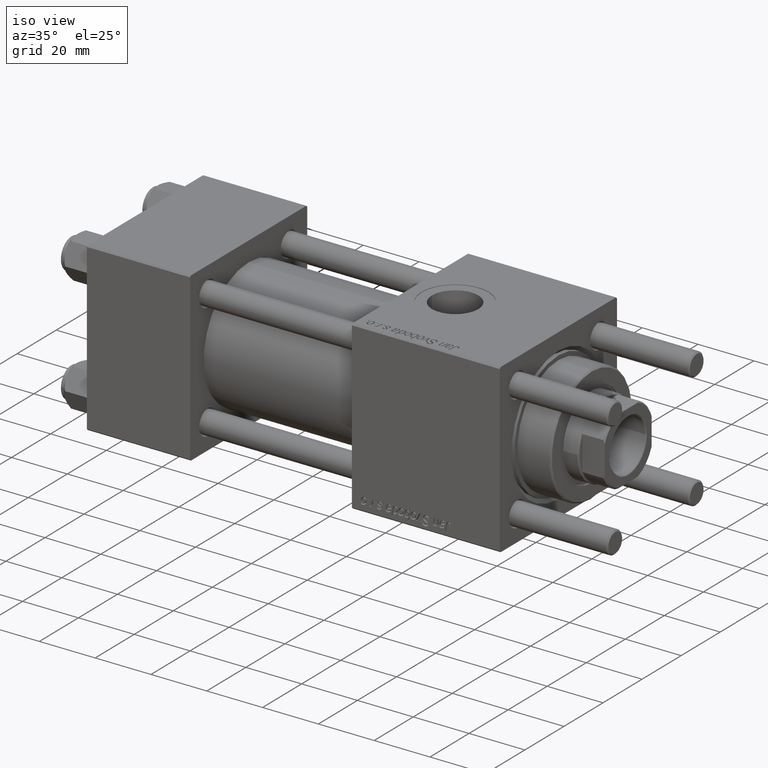
[diagram: clean part render]
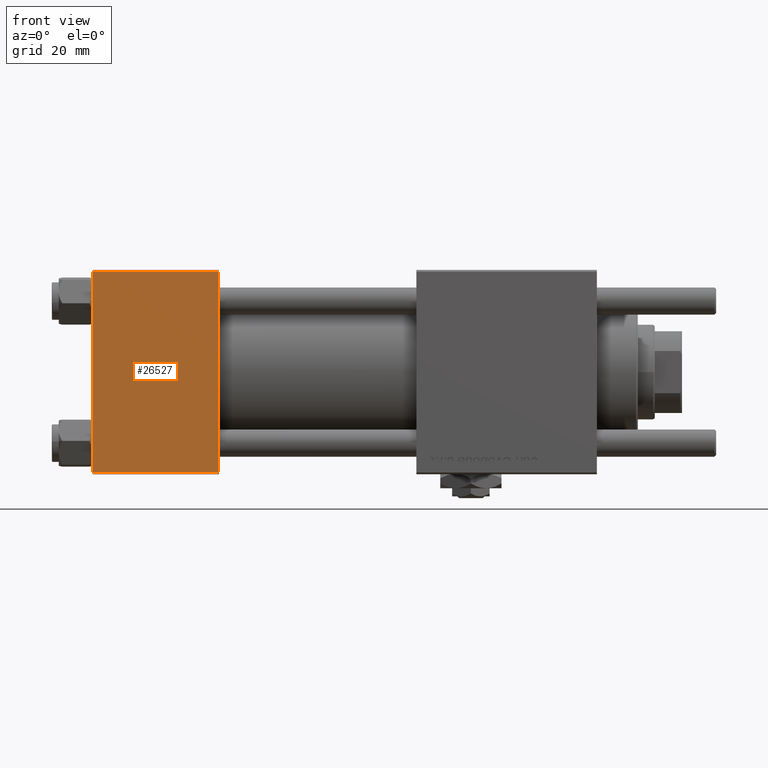
[diagram: tour spotlight — one face highlighted and labeled with its STEP entity id]
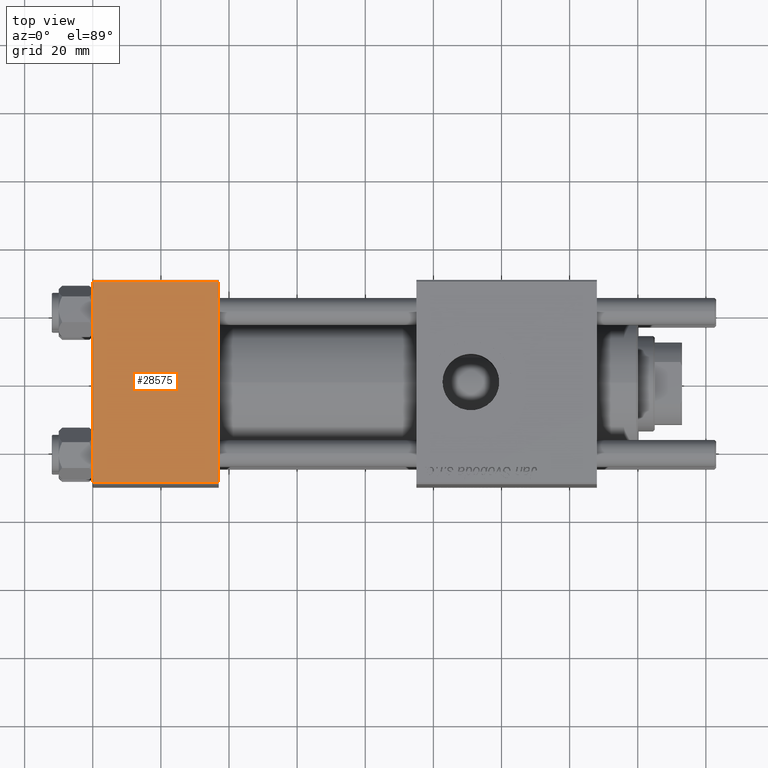
[diagram: tour spotlight — one face highlighted and labeled with its STEP entity id]
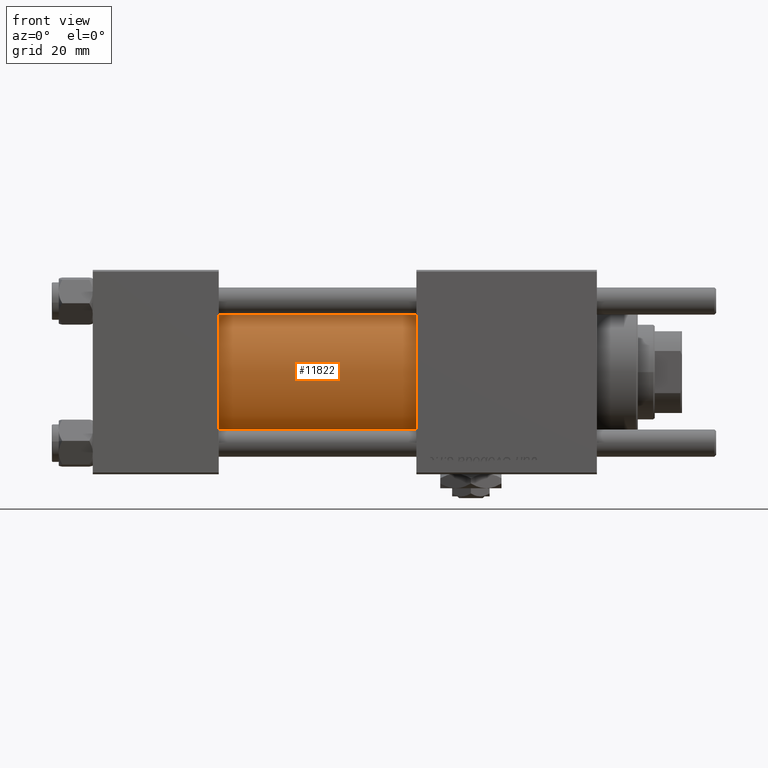
[diagram: tour spotlight — one face highlighted and labeled with its STEP entity id]
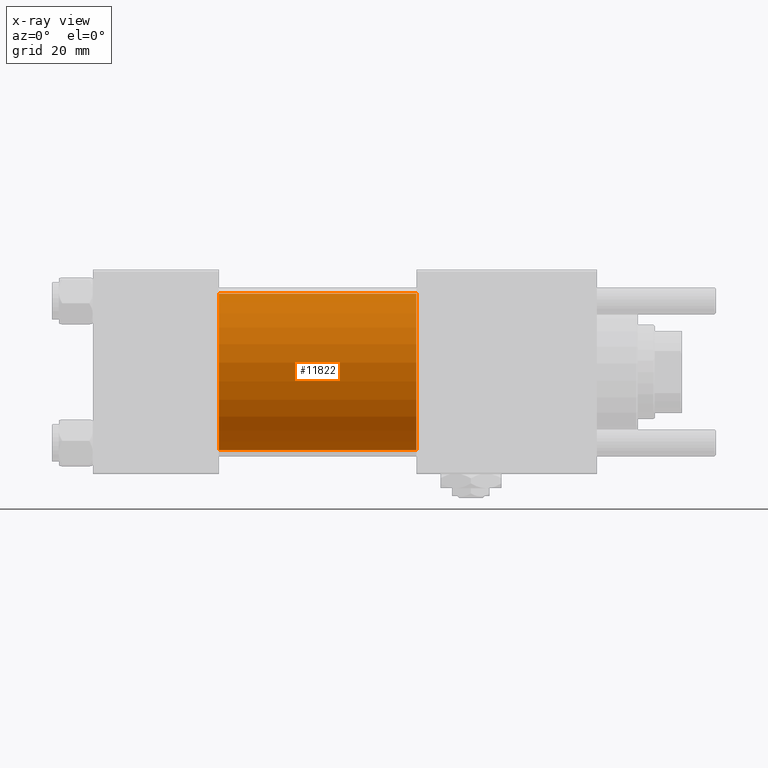
[diagram: x-ray of the same camera — body ghosted, this tour face saturated]
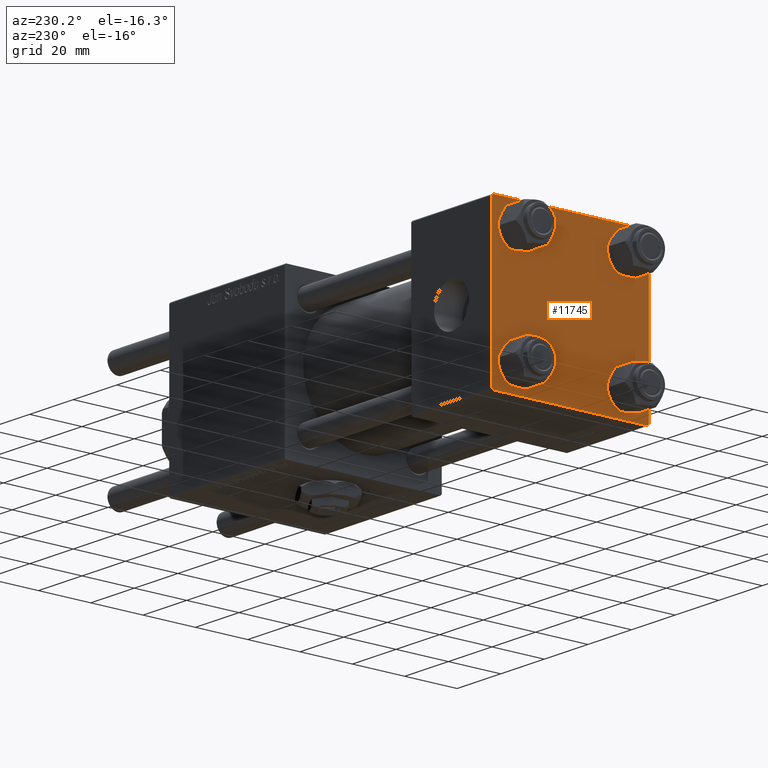
[diagram: tour spotlight — one face highlighted and labeled with its STEP entity id]
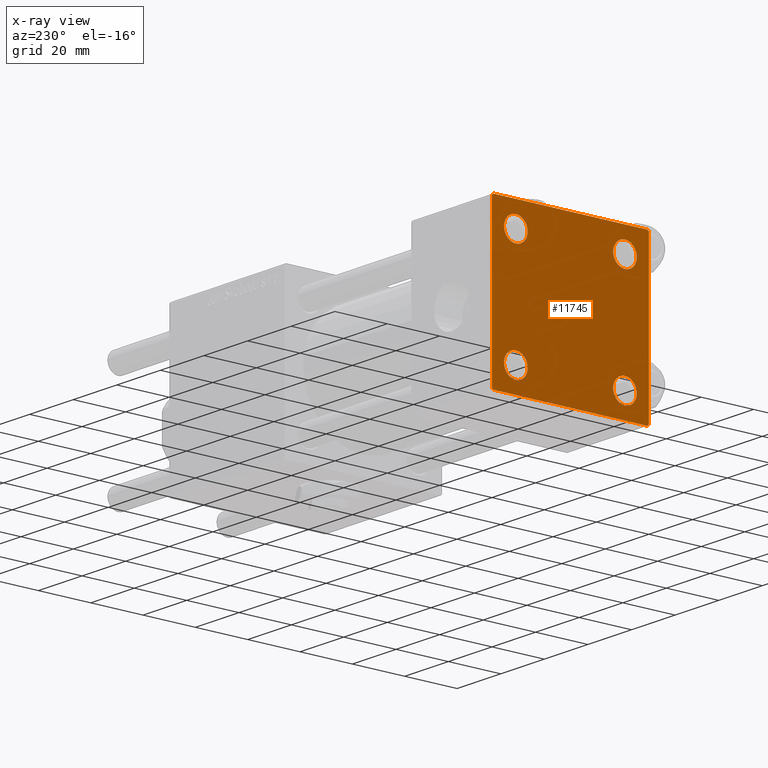
[diagram: x-ray of the same camera — body ghosted, this tour face saturated]
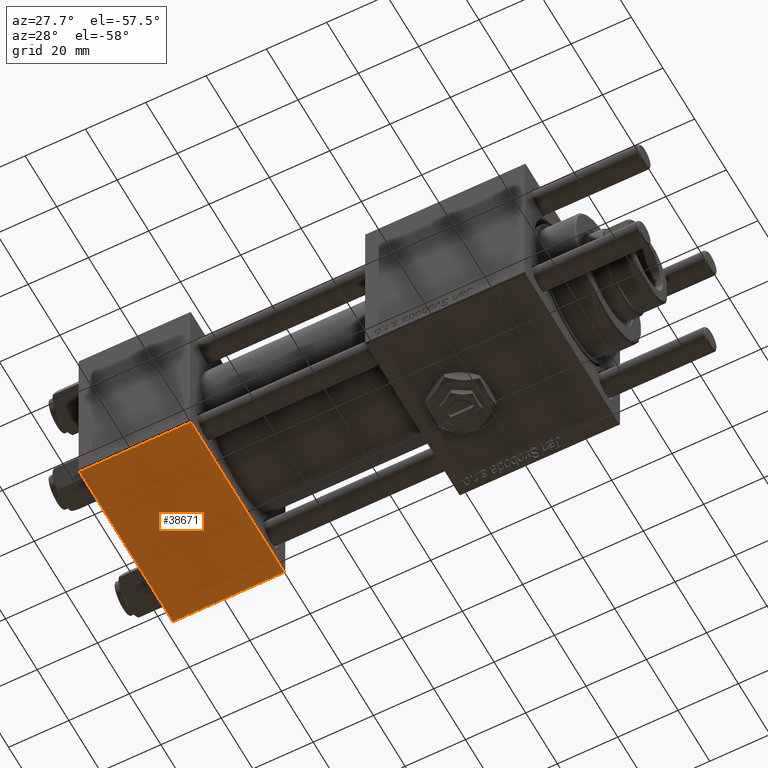
[diagram: tour spotlight — one face highlighted and labeled with its STEP entity id]
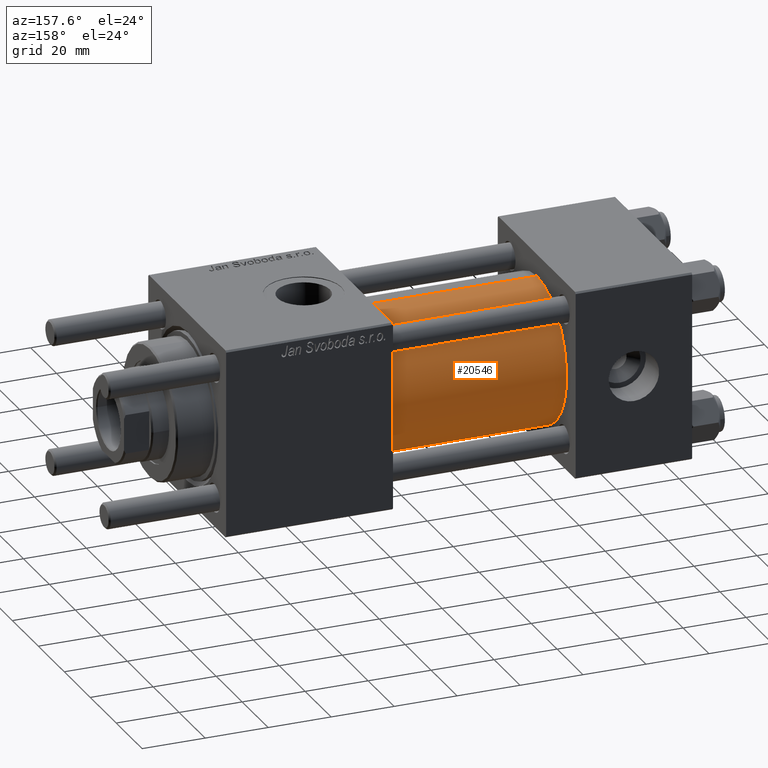
[diagram: tour spotlight — one face highlighted and labeled with its STEP entity id]
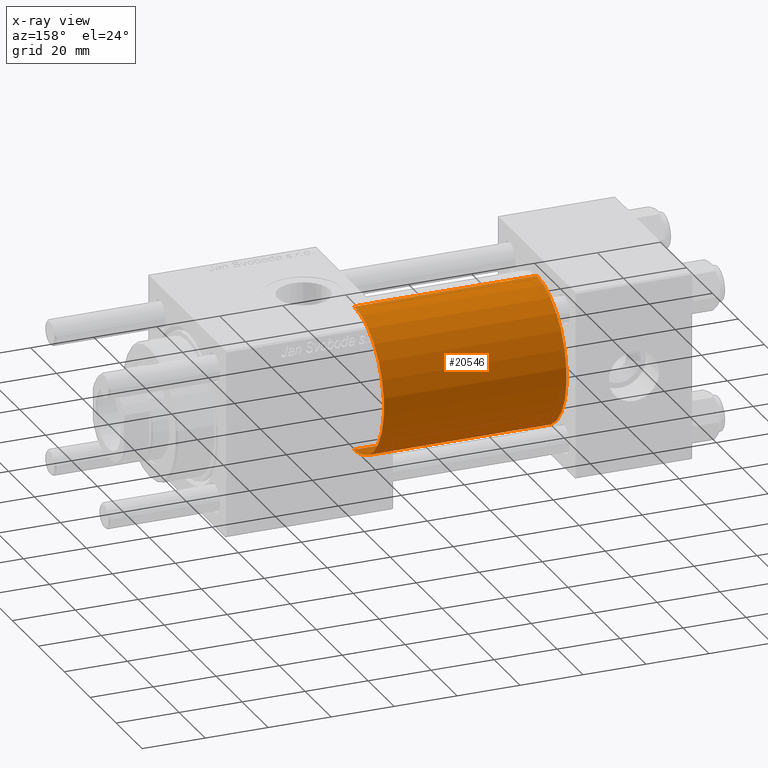
[diagram: x-ray of the same camera — body ghosted, this tour face saturated]
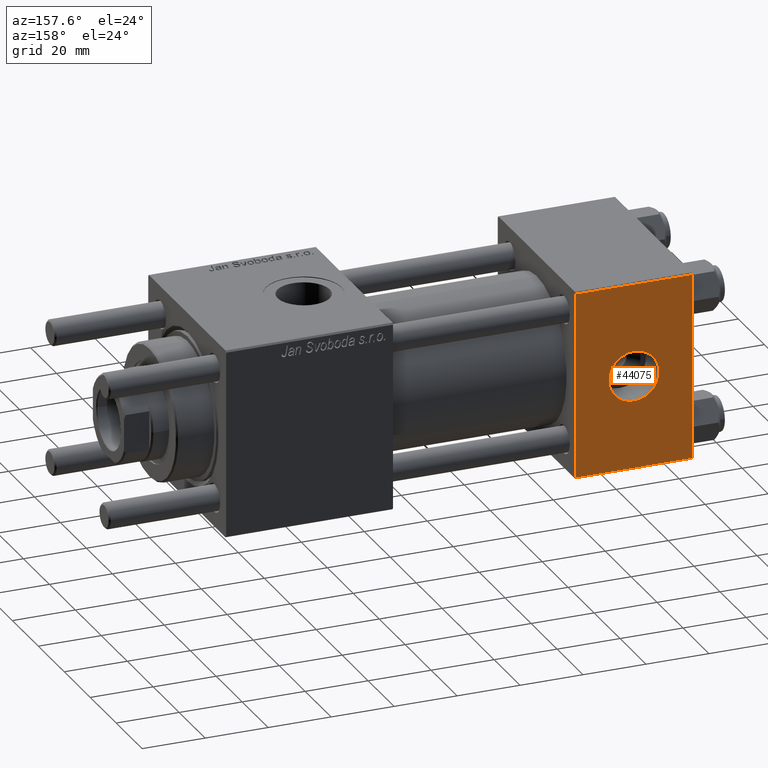
[diagram: tour spotlight — one face highlighted and labeled with its STEP entity id]
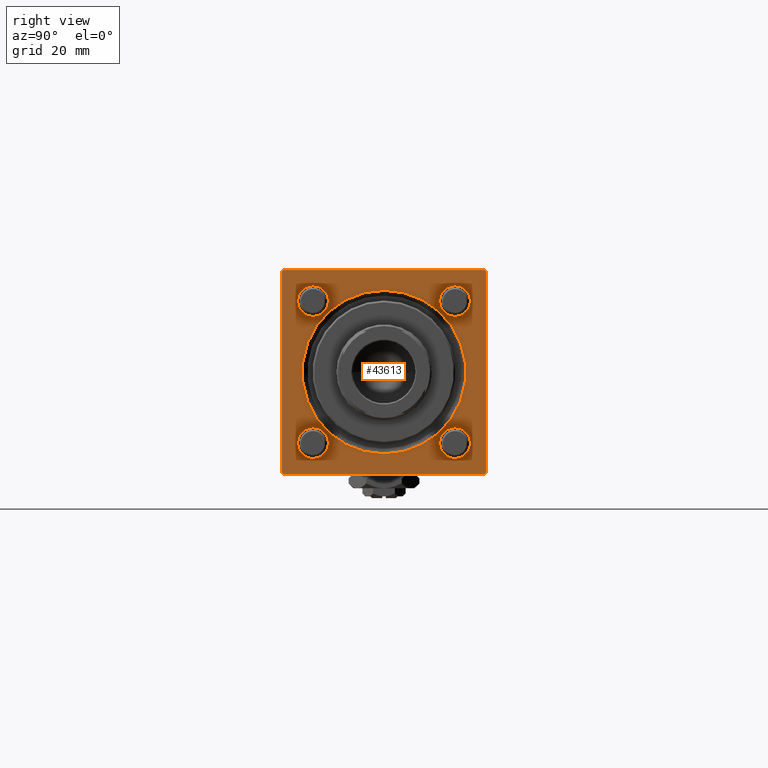
[diagram: tour spotlight — one face highlighted and labeled with its STEP entity id]
A machine part: a face-by-face anatomy tour. The part has 1207 B-rep faces; the first image is the clean iso view, then the 8 largest visible faces are spotlighted one at a time (largest first), each with its STEP entity span.

Face 1 — front view, entity #26527. In plain terms, the highlighted planar face has unit normal (0, 1, 0).
Definition (entity closure, byte-faithful):
#1996 = VECTOR ( 'NONE', #10871, 1000.000000000000000 ) ;
#2885 = ORIENTED_EDGE ( 'NONE', *, *, #41058, .T. ) ;
#4778 = VERTEX_POINT ( 'NONE', #36887 ) ;
#5008 = PLANE ( 'NONE',  #29564 ) ;
#5598 = EDGE_LOOP ( 'NONE', ( #42679, #57048, #16610, #2885 ) ) ;
#10871 = DIRECTION ( 'NONE',  ( 1.000000000000000000, 0.000000000000000000, 0.000000000000000000 ) ) ;
#13630 = FACE_OUTER_BOUND ( 'NONE', #5598, .T. ) ;
#15123 = EDGE_CURVE ( 'NONE', #53500, #39922, #49493, .T. ) ;
#16610 = ORIENTED_EDGE ( 'NONE', *, *, #15123, .F. ) ;
#17640 = CARTESIAN_POINT ( 'NONE',  ( 0.000000000000000000, -30.00000000000000000, 29.99999999999999289 ) ) ;
#18758 = VECTOR ( 'NONE', #30053, 1000.000000000000000 ) ;
#19453 = LINE ( 'NONE', #56718, #1996 ) ;
#21612 = CARTESIAN_POINT ( 'NONE',  ( 37.00000000000000000, -30.00000000000000000, -29.50000000000001776 ) ) ;
#23025 = EDGE_CURVE ( 'NONE', #51017, #39922, #19453, .T. ) ;
#23650 = DIRECTION ( 'NONE',  ( -0.000000000000000000, 1.000000000000000000, 0.000000000000000000 ) ) ;
#26527 = ADVANCED_FACE ( 'NONE', ( #13630 ), #5008, .F. ) ;
#29564 = AXIS2_PLACEMENT_3D ( 'NONE', #54464, #23650, #54177 ) ;
#30053 = DIRECTION ( 'NONE',  ( 0.000000000000000000, 0.000000000000000000, -1.000000000000000000 ) ) ;
#31332 = LINE ( 'NONE', #49395, #58211 ) ;
#31903 = DIRECTION ( 'NONE',  ( -1.000000000000000000, 0.000000000000000000, 0.000000000000000000 ) ) ;
#36887 = CARTESIAN_POINT ( 'NONE',  ( 0.000000000000000000, -30.00000000000000000, 29.49999999999999289 ) ) ;
#39922 = VERTEX_POINT ( 'NONE', #21612 ) ;
#41058 = EDGE_CURVE ( 'NONE', #53500, #4778, #31332, .T. ) ;
#42679 = ORIENTED_EDGE ( 'NONE', *, *, #57513, .T. ) ;
#44457 = DIRECTION ( 'NONE',  ( 0.000000000000000000, 0.000000000000000000, -1.000000000000000000 ) ) ;
#45609 = VECTOR ( 'NONE', #44457, 1000.000000000000000 ) ;
#48594 = CARTESIAN_POINT ( 'NONE',  ( 37.00000000000000000, -30.00000000000000000, 29.99999999999999289 ) ) ;
#49395 = CARTESIAN_POINT ( 'NONE',  ( 37.00000000000000000, -30.00000000000000000, 29.49999999999999289 ) ) ;
#49493 = LINE ( 'NONE', #48594, #45609 ) ;
#49552 = CARTESIAN_POINT ( 'NONE',  ( 37.00000000000000000, -30.00000000000000000, 29.49999999999999289 ) ) ;
#51017 = VERTEX_POINT ( 'NONE', #57136 ) ;
#53158 = LINE ( 'NONE', #17640, #18758 ) ;
#53500 = VERTEX_POINT ( 'NONE', #49552 ) ;
#54177 = DIRECTION ( 'NONE',  ( 0.000000000000000000, -0.000000000000000000, 1.000000000000000000 ) ) ;
#54464 = CARTESIAN_POINT ( 'NONE',  ( 37.00000000000000000, -30.00000000000000000, 29.99999999999999289 ) ) ;
#56718 = CARTESIAN_POINT ( 'NONE',  ( 37.00000000000000000, -30.00000000000000000, -29.50000000000001776 ) ) ;
#57048 = ORIENTED_EDGE ( 'NONE', *, *, #23025, .T. ) ;
#57136 = CARTESIAN_POINT ( 'NONE',  ( 0.000000000000000000, -30.00000000000000000, -29.50000000000001776 ) ) ;
#57513 = EDGE_CURVE ( 'NONE', #4778, #51017, #53158, .T. ) ;
#58211 = VECTOR ( 'NONE', #31903, 1000.000000000000000 ) ;

Face 2 — top view, entity #28575. In plain terms, the highlighted planar face has unit normal (0, 0, -1).
Definition (entity closure, byte-faithful):
#2048 = DIRECTION ( 'NONE',  ( 1.000000000000000000, 0.000000000000000000, 0.000000000000000000 ) ) ;
#2734 = DIRECTION ( 'NONE',  ( 0.000000000000000000, -1.000000000000000000, -1.156482317317871725E-16 ) ) ;
#3309 = DIRECTION ( 'NONE',  ( 0.000000000000000000, 1.000000000000000000, 1.156482317317871725E-16 ) ) ;
#3321 = LINE ( 'NONE', #11070, #16792 ) ;
#6050 = CARTESIAN_POINT ( 'NONE',  ( 37.00000000000000000, -29.49999999999998579, 29.99999999999999289 ) ) ;
#11070 = CARTESIAN_POINT ( 'NONE',  ( 0.000000000000000000, 29.99999999999999289, 30.00000000000000000 ) ) ;
#12516 = PLANE ( 'NONE',  #42814 ) ;
#15027 = ORIENTED_EDGE ( 'NONE', *, *, #52773, .T. ) ;
#16792 = VECTOR ( 'NONE', #2734, 1000.000000000000000 ) ;
#17257 = DIRECTION ( 'NONE',  ( 0.000000000000000000, 1.156482317317871725E-16, -1.000000000000000000 ) ) ;
#18294 = DIRECTION ( 'NONE',  ( -1.000000000000000000, 0.000000000000000000, 0.000000000000000000 ) ) ;
#21068 = FACE_OUTER_BOUND ( 'NONE', #43318, .T. ) ;
#22944 = CARTESIAN_POINT ( 'NONE',  ( 0.000000000000000000, -29.49999999999998579, 29.99999999999999289 ) ) ;
#23476 = ORIENTED_EDGE ( 'NONE', *, *, #47939, .T. ) ;
#28575 = ADVANCED_FACE ( 'NONE', ( #21068 ), #12516, .F. ) ;
#30548 = CARTESIAN_POINT ( 'NONE',  ( 37.00000000000000000, 29.99999999999999289, 30.00000000000000000 ) ) ;
#33966 = LINE ( 'NONE', #47596, #58341 ) ;
#34104 = VERTEX_POINT ( 'NONE', #22944 ) ;
#36889 = VERTEX_POINT ( 'NONE', #53708 ) ;
#37202 = LINE ( 'NONE', #40471, #54720 ) ;
#38618 = CARTESIAN_POINT ( 'NONE',  ( 37.00000000000000000, 29.49999999999999289, 30.00000000000000000 ) ) ;
#40372 = VERTEX_POINT ( 'NONE', #6050 ) ;
#40471 = CARTESIAN_POINT ( 'NONE',  ( 0.000000000000000000, 29.49999999999999289, 30.00000000000000000 ) ) ;
#42595 = CARTESIAN_POINT ( 'NONE',  ( 37.00000000000000000, -29.50000000000000000, 29.99999999999999289 ) ) ;
#42814 = AXIS2_PLACEMENT_3D ( 'NONE', #30548, #17257, #3309 ) ;
#43318 = EDGE_LOOP ( 'NONE', ( #47952, #15027, #46616, #23476 ) ) ;
#44775 = EDGE_CURVE ( 'NONE', #56041, #40372, #33966, .T. ) ;
#45375 = EDGE_CURVE ( 'NONE', #36889, #34104, #3321, .T. ) ;
#46616 = ORIENTED_EDGE ( 'NONE', *, *, #44775, .F. ) ;
#47349 = LINE ( 'NONE', #42595, #51703 ) ;
#47596 = CARTESIAN_POINT ( 'NONE',  ( 37.00000000000000000, 29.99999999999999289, 30.00000000000000000 ) ) ;
#47939 = EDGE_CURVE ( 'NONE', #56041, #36889, #37202, .T. ) ;
#47952 = ORIENTED_EDGE ( 'NONE', *, *, #45375, .T. ) ;
#51703 = VECTOR ( 'NONE', #2048, 1000.000000000000000 ) ;
#52045 = DIRECTION ( 'NONE',  ( 0.000000000000000000, -1.000000000000000000, -1.156482317317871725E-16 ) ) ;
#52773 = EDGE_CURVE ( 'NONE', #34104, #40372, #47349, .T. ) ;
#53708 = CARTESIAN_POINT ( 'NONE',  ( 0.000000000000000000, 29.49999999999999289, 30.00000000000000000 ) ) ;
#54720 = VECTOR ( 'NONE', #18294, 1000.000000000000000 ) ;
#56041 = VERTEX_POINT ( 'NONE', #38618 ) ;
#58341 = VECTOR ( 'NONE', #52045, 1000.000000000000000 ) ;

Face 3 — front view, entity #11822. An x-ray twin of the same camera follows (body ghosted, this face saturated) — the face is partly hidden behind the body. In plain terms, the highlighted cylindrical surface (partial cylindrical patch) has radius 23 mm, axis along (-1, -0, -0).
Definition (entity closure, byte-faithful):
#2888 = AXIS2_PLACEMENT_3D ( 'NONE', #31634, #53565, #13013 ) ;
#3709 = DIRECTION ( 'NONE',  ( 0.000000000000000000, 0.000000000000000000, 1.000000000000000000 ) ) ;
#4434 = VERTEX_POINT ( 'NONE', #8856 ) ;
#5738 = CIRCLE ( 'NONE', #2888, 23.00000000000000000 ) ;
#8856 = CARTESIAN_POINT ( 'NONE',  ( 37.00000000000000000, 2.146024240737012665E-16, -23.00000000000000000 ) ) ;
#11822 = ADVANCED_FACE ( 'NONE', ( #26207 ), #39819, .T. ) ;
#12122 = AXIS2_PLACEMENT_3D ( 'NONE', #45269, #14200, #27200 ) ;
#12889 = LINE ( 'NONE', #58452, #19675 ) ;
#13013 = DIRECTION ( 'NONE',  ( 0.000000000000000000, 0.000000000000000000, 1.000000000000000000 ) ) ;
#13188 = DIRECTION ( 'NONE',  ( -1.000000000000000000, -0.000000000000000000, -0.000000000000000000 ) ) ;
#13995 = DIRECTION ( 'NONE',  ( -1.000000000000000000, -0.000000000000000000, -0.000000000000000000 ) ) ;
#14200 = DIRECTION ( 'NONE',  ( 1.000000000000000000, 0.000000000000000000, 0.000000000000000000 ) ) ;
#16752 = DIRECTION ( 'NONE',  ( -1.000000000000000000, -0.000000000000000000, -0.000000000000000000 ) ) ;
#17052 = CARTESIAN_POINT ( 'NONE',  ( 95.00000000000000000, -2.602085213965210642E-15, 0.000000000000000000 ) ) ;
#19007 = CARTESIAN_POINT ( 'NONE',  ( 95.00000000000000000, 2.146024240737012665E-16, -23.00000000000000000 ) ) ;
#19675 = VECTOR ( 'NONE', #13188, 1000.000000000000000 ) ;
#19929 = VECTOR ( 'NONE', #13995, 1000.000000000000000 ) ;
#20421 = EDGE_CURVE ( 'NONE', #34857, #4434, #5738, .T. ) ;
#20579 = ORIENTED_EDGE ( 'NONE', *, *, #22287, .F. ) ;
#21825 = VERTEX_POINT ( 'NONE', #35063 ) ;
#22287 = EDGE_CURVE ( 'NONE', #41255, #4434, #33182, .T. ) ;
#23387 = CARTESIAN_POINT ( 'NONE',  ( 37.00000000000000000, -2.602085213965210642E-15, 23.00000000000000000 ) ) ;
#26207 = FACE_OUTER_BOUND ( 'NONE', #38466, .T. ) ;
#26600 = AXIS2_PLACEMENT_3D ( 'NONE', #17052, #16752, #3709 ) ;
#27200 = DIRECTION ( 'NONE',  ( 0.000000000000000000, 0.000000000000000000, -1.000000000000000000 ) ) ;
#30231 = CARTESIAN_POINT ( 'NONE',  ( 95.00000000000000000, 2.146024240737012665E-16, -23.00000000000000000 ) ) ;
#31634 = CARTESIAN_POINT ( 'NONE',  ( 37.00000000000000000, -2.602085213965210642E-15, 0.000000000000000000 ) ) ;
#33022 = ORIENTED_EDGE ( 'NONE', *, *, #46957, .F. ) ;
#33182 = LINE ( 'NONE', #19007, #19929 ) ;
#34857 = VERTEX_POINT ( 'NONE', #23387 ) ;
#35063 = CARTESIAN_POINT ( 'NONE',  ( 95.00000000000000000, -2.602085213965210642E-15, 23.00000000000000000 ) ) ;
#35764 = ORIENTED_EDGE ( 'NONE', *, *, #47053, .T. ) ;
#37606 = CIRCLE ( 'NONE', #12122, 23.00000000000000000 ) ;
#38466 = EDGE_LOOP ( 'NONE', ( #20579, #33022, #35764, #46181 ) ) ;
#39819 = CYLINDRICAL_SURFACE ( 'NONE', #26600, 23.00000000000000000 ) ;
#41255 = VERTEX_POINT ( 'NONE', #30231 ) ;
#45269 = CARTESIAN_POINT ( 'NONE',  ( 95.00000000000000000, -2.602085213965210642E-15, 0.000000000000000000 ) ) ;
#46181 = ORIENTED_EDGE ( 'NONE', *, *, #20421, .T. ) ;
#46957 = EDGE_CURVE ( 'NONE', #21825, #41255, #37606, .T. ) ;
#47053 = EDGE_CURVE ( 'NONE', #21825, #34857, #12889, .T. ) ;
#53565 = DIRECTION ( 'NONE',  ( 1.000000000000000000, -0.000000000000000000, 0.000000000000000000 ) ) ;
#58452 = CARTESIAN_POINT ( 'NONE',  ( 95.00000000000000000, -2.602085213965210642E-15, 23.00000000000000000 ) ) ;

Face 4 — auxiliary view, entity #11745. An x-ray twin of the same camera follows (body ghosted, this face saturated) — the face is partly hidden behind the body. In plain terms, the highlighted planar face has unit normal (-1, 0, 0).
Definition (entity closure, byte-faithful):
#312 = DIRECTION ( 'NONE',  ( 0.000000000000000000, 0.000000000000000000, 1.000000000000000000 ) ) ;
#1698 = DIRECTION ( 'NONE',  ( 0.000000000000000000, 0.000000000000000000, -1.000000000000000000 ) ) ;
#2251 = DIRECTION ( 'NONE',  ( 1.000000000000000000, -0.000000000000000000, 0.000000000000000000 ) ) ;
#2734 = DIRECTION ( 'NONE',  ( 0.000000000000000000, -1.000000000000000000, -1.156482317317871725E-16 ) ) ;
#2785 = VERTEX_POINT ( 'NONE', #2893 ) ;
#2893 = CARTESIAN_POINT ( 'NONE',  ( 0.000000000000000000, -29.50000000000000000, -30.00000000000000711 ) ) ;
#3321 = LINE ( 'NONE', #11070, #16792 ) ;
#3756 = VERTEX_POINT ( 'NONE', #45237 ) ;
#4405 = AXIS2_PLACEMENT_3D ( 'NONE', #4554, #35346, #17317 ) ;
#4554 = CARTESIAN_POINT ( 'NONE',  ( 0.000000000000000000, 20.84999999999999787, 20.85000000000000142 ) ) ;
#4690 = ORIENTED_EDGE ( 'NONE', *, *, #17860, .T. ) ;
#4778 = VERTEX_POINT ( 'NONE', #36887 ) ;
#5183 = CARTESIAN_POINT ( 'NONE',  ( 0.000000000000000000, 29.74999999999999645, 29.74999999999999645 ) ) ;
#5209 = ORIENTED_EDGE ( 'NONE', *, *, #53537, .T. ) ;
#6007 = EDGE_CURVE ( 'NONE', #30713, #47038, #31455, .T. ) ;
#6154 = ORIENTED_EDGE ( 'NONE', *, *, #32616, .T. ) ;
#6406 = DIRECTION ( 'NONE',  ( -0.000000000000000000, 0.000000000000000000, 1.000000000000000000 ) ) ;
#6717 = AXIS2_PLACEMENT_3D ( 'NONE', #47546, #29482, #6406 ) ;
#8619 = AXIS2_PLACEMENT_3D ( 'NONE', #12902, #30937, #48999 ) ;
#8987 = CARTESIAN_POINT ( 'NONE',  ( 0.000000000000000000, 29.99999999999999289, -30.00000000000000000 ) ) ;
#9187 = VERTEX_POINT ( 'NONE', #25627 ) ;
#9252 = DIRECTION ( 'NONE',  ( -0.000000000000000000, -0.7071067811865574537, -0.7071067811865376918 ) ) ;
#9409 = VECTOR ( 'NONE', #9252, 999.9999999999998863 ) ;
#10056 = CARTESIAN_POINT ( 'NONE',  ( 0.000000000000000000, 20.84999999999999787, 25.35000000000001918 ) ) ;
#10650 = CARTESIAN_POINT ( 'NONE',  ( 0.000000000000000000, -20.84999999999999076, -20.85000000000000497 ) ) ;
#11070 = CARTESIAN_POINT ( 'NONE',  ( 0.000000000000000000, 29.99999999999999289, 30.00000000000000000 ) ) ;
#11745 = ADVANCED_FACE ( 'NONE', ( #37488, #55566, #29190, #47252, #20303 ), #56135, .T. ) ;
#12338 = CARTESIAN_POINT ( 'NONE',  ( 0.000000000000000000, 20.84999999999999787, 16.34999999999998366 ) ) ;
#12713 = CIRCLE ( 'NONE', #49612, 4.500000000000017764 ) ;
#12902 = CARTESIAN_POINT ( 'NONE',  ( 0.000000000000000000, -20.84999999999999076, -20.85000000000000497 ) ) ;
#13173 = AXIS2_PLACEMENT_3D ( 'NONE', #49788, #22537, #45635 ) ;
#15056 = ORIENTED_EDGE ( 'NONE', *, *, #42608, .T. ) ;
#15960 = AXIS2_PLACEMENT_3D ( 'NONE', #24189, #2251, #25044 ) ;
#16171 = DIRECTION ( 'NONE',  ( 1.000000000000000000, -0.000000000000000000, 0.000000000000000000 ) ) ;
#16474 = ORIENTED_EDGE ( 'NONE', *, *, #48153, .T. ) ;
#16792 = VECTOR ( 'NONE', #2734, 1000.000000000000000 ) ;
#17129 = CIRCLE ( 'NONE', #8619, 4.500000000000017764 ) ;
#17317 = DIRECTION ( 'NONE',  ( 0.000000000000000000, 0.000000000000000000, 1.000000000000000000 ) ) ;
#17640 = CARTESIAN_POINT ( 'NONE',  ( 0.000000000000000000, -30.00000000000000000, 29.99999999999999289 ) ) ;
#17737 = EDGE_CURVE ( 'NONE', #37760, #51820, #17129, .T. ) ;
#17860 = EDGE_CURVE ( 'NONE', #4778, #34104, #29903, .T. ) ;
#18758 = VECTOR ( 'NONE', #30053, 1000.000000000000000 ) ;
#19201 = CARTESIAN_POINT ( 'NONE',  ( 0.000000000000000000, 29.99999999999999289, 30.00000000000000000 ) ) ;
#19510 = ORIENTED_EDGE ( 'NONE', *, *, #30885, .T. ) ;
#20303 = FACE_OUTER_BOUND ( 'NONE', #54372, .T. ) ;
#21662 = VERTEX_POINT ( 'NONE', #47224 ) ;
#22098 = CARTESIAN_POINT ( 'NONE',  ( 0.000000000000000000, -20.84999999999999076, 25.35000000000002274 ) ) ;
#22537 = DIRECTION ( 'NONE',  ( 1.000000000000000000, -0.000000000000000000, 0.000000000000000000 ) ) ;
#22696 = CARTESIAN_POINT ( 'NONE',  ( 0.000000000000000000, 29.99999999999999289, -29.50000000000000000 ) ) ;
#22944 = CARTESIAN_POINT ( 'NONE',  ( 0.000000000000000000, -29.49999999999998579, 29.99999999999999289 ) ) ;
#23236 = DIRECTION ( 'NONE',  ( 0.000000000000000000, 0.7071067811865474617, -0.7071067811865474617 ) ) ;
#23894 = VERTEX_POINT ( 'NONE', #12338 ) ;
#24189 = CARTESIAN_POINT ( 'NONE',  ( 0.000000000000000000, -20.84999999999999076, 20.85000000000000497 ) ) ;
#24829 = AXIS2_PLACEMENT_3D ( 'NONE', #54192, #31958, #40838 ) ;
#25044 = DIRECTION ( 'NONE',  ( 0.000000000000000000, 0.000000000000000000, 1.000000000000000000 ) ) ;
#25627 = CARTESIAN_POINT ( 'NONE',  ( 0.000000000000000000, 29.99999999999999289, 29.50000000000000000 ) ) ;
#25974 = VERTEX_POINT ( 'NONE', #27643 ) ;
#26488 = VERTEX_POINT ( 'NONE', #10056 ) ;
#27535 = EDGE_CURVE ( 'NONE', #38418, #3756, #50365, .T. ) ;
#27624 = EDGE_CURVE ( 'NONE', #51820, #37760, #49480, .T. ) ;
#27643 = CARTESIAN_POINT ( 'NONE',  ( 0.000000000000000000, 20.84999999999999787, -16.34999999999998366 ) ) ;
#27684 = LINE ( 'NONE', #5183, #32560 ) ;
#28928 = EDGE_LOOP ( 'NONE', ( #56711, #40977 ) ) ;
#28989 = VECTOR ( 'NONE', #1698, 1000.000000000000000 ) ;
#29190 = FACE_BOUND ( 'NONE', #28928, .T. ) ;
#29482 = DIRECTION ( 'NONE',  ( -1.000000000000000000, 0.000000000000000000, -0.000000000000000000 ) ) ;
#29671 = AXIS2_PLACEMENT_3D ( 'NONE', #33903, #16171, #30341 ) ;
#29903 = LINE ( 'NONE', #42635, #31319 ) ;
#30053 = DIRECTION ( 'NONE',  ( 0.000000000000000000, 0.000000000000000000, -1.000000000000000000 ) ) ;
#30341 = DIRECTION ( 'NONE',  ( 0.000000000000000000, 0.000000000000000000, 1.000000000000000000 ) ) ;
#30571 = AXIS2_PLACEMENT_3D ( 'NONE', #10650, #33990, #55638 ) ;
#30713 = VERTEX_POINT ( 'NONE', #22696 ) ;
#30885 = EDGE_CURVE ( 'NONE', #26488, #23894, #51450, .T. ) ;
#30897 = VECTOR ( 'NONE', #36502, 1000.000000000000000 ) ;
#30937 = DIRECTION ( 'NONE',  ( 1.000000000000000000, -0.000000000000000000, 0.000000000000000000 ) ) ;
#31319 = VECTOR ( 'NONE', #39367, 1000.000000000000114 ) ;
#31455 = LINE ( 'NONE', #40907, #9409 ) ;
#31958 = DIRECTION ( 'NONE',  ( 1.000000000000000000, -0.000000000000000000, 0.000000000000000000 ) ) ;
#32560 = VECTOR ( 'NONE', #23236, 1000.000000000000114 ) ;
#32615 = DIRECTION ( 'NONE',  ( 0.000000000000000000, -0.7071067811865474617, 0.7071067811865474617 ) ) ;
#32616 = EDGE_CURVE ( 'NONE', #36889, #9187, #27684, .T. ) ;
#33903 = CARTESIAN_POINT ( 'NONE',  ( 0.000000000000000000, 20.84999999999999787, 20.85000000000000142 ) ) ;
#33990 = DIRECTION ( 'NONE',  ( 1.000000000000000000, -0.000000000000000000, 0.000000000000000000 ) ) ;
#34104 = VERTEX_POINT ( 'NONE', #22944 ) ;
#34685 = CARTESIAN_POINT ( 'NONE',  ( 0.000000000000000000, -20.84999999999999076, -25.35000000000002274 ) ) ;
#35346 = DIRECTION ( 'NONE',  ( 1.000000000000000000, -0.000000000000000000, 0.000000000000000000 ) ) ;
#35597 = CIRCLE ( 'NONE', #4405, 4.500000000000017764 ) ;
#36502 = DIRECTION ( 'NONE',  ( 0.000000000000000000, -1.000000000000000000, -1.156482317317871725E-16 ) ) ;
#36887 = CARTESIAN_POINT ( 'NONE',  ( 0.000000000000000000, -30.00000000000000000, 29.49999999999999289 ) ) ;
#36889 = VERTEX_POINT ( 'NONE', #53708 ) ;
#37128 = EDGE_CURVE ( 'NONE', #25974, #21662, #12713, .T. ) ;
#37235 = LINE ( 'NONE', #19201, #28989 ) ;
#37345 = LINE ( 'NONE', #55418, #48052 ) ;
#37488 = FACE_BOUND ( 'NONE', #41970, .T. ) ;
#37760 = VERTEX_POINT ( 'NONE', #34685 ) ;
#38418 = VERTEX_POINT ( 'NONE', #22098 ) ;
#38623 = ORIENTED_EDGE ( 'NONE', *, *, #17737, .T. ) ;
#39367 = DIRECTION ( 'NONE',  ( -0.000000000000000000, 0.7071067811865474617, 0.7071067811865474617 ) ) ;
#39976 = ORIENTED_EDGE ( 'NONE', *, *, #6007, .T. ) ;
#40013 = ORIENTED_EDGE ( 'NONE', *, *, #43091, .T. ) ;
#40838 = DIRECTION ( 'NONE',  ( 0.000000000000000000, 0.000000000000000000, 1.000000000000000000 ) ) ;
#40868 = DIRECTION ( 'NONE',  ( 1.000000000000000000, -0.000000000000000000, 0.000000000000000000 ) ) ;
#40907 = CARTESIAN_POINT ( 'NONE',  ( 0.000000000000000000, 29.74999999999957723, -29.75000000000040501 ) ) ;
#40977 = ORIENTED_EDGE ( 'NONE', *, *, #50056, .T. ) ;
#41019 = ORIENTED_EDGE ( 'NONE', *, *, #48817, .T. ) ;
#41448 = CIRCLE ( 'NONE', #15960, 4.500000000000017764 ) ;
#41970 = EDGE_LOOP ( 'NONE', ( #54910, #41019 ) ) ;
#42608 = EDGE_CURVE ( 'NONE', #9187, #30713, #37235, .T. ) ;
#42635 = CARTESIAN_POINT ( 'NONE',  ( -0.000000000000000000, -29.74999999999999645, 29.74999999999999645 ) ) ;
#43091 = EDGE_CURVE ( 'NONE', #23894, #26488, #35597, .T. ) ;
#43225 = ORIENTED_EDGE ( 'NONE', *, *, #45375, .F. ) ;
#43232 = CARTESIAN_POINT ( 'NONE',  ( 0.000000000000000000, -20.84999999999999076, -16.34999999999998721 ) ) ;
#44806 = LINE ( 'NONE', #8987, #30897 ) ;
#45134 = CARTESIAN_POINT ( 'NONE',  ( 0.000000000000000000, 29.49999999999997868, -30.00000000000000000 ) ) ;
#45237 = CARTESIAN_POINT ( 'NONE',  ( 0.000000000000000000, -20.84999999999999076, 16.34999999999998721 ) ) ;
#45375 = EDGE_CURVE ( 'NONE', #36889, #34104, #3321, .T. ) ;
#45635 = DIRECTION ( 'NONE',  ( 0.000000000000000000, 0.000000000000000000, 1.000000000000000000 ) ) ;
#45687 = EDGE_LOOP ( 'NONE', ( #57989, #38623 ) ) ;
#46071 = ORIENTED_EDGE ( 'NONE', *, *, #57513, .F. ) ;
#47038 = VERTEX_POINT ( 'NONE', #45134 ) ;
#47224 = CARTESIAN_POINT ( 'NONE',  ( 0.000000000000000000, 20.84999999999999787, -25.35000000000001918 ) ) ;
#47252 = FACE_BOUND ( 'NONE', #55212, .T. ) ;
#47546 = CARTESIAN_POINT ( 'NONE',  ( 0.000000000000000000, 0.000000000000000000, 0.000000000000000000 ) ) ;
#48052 = VECTOR ( 'NONE', #32615, 1000.000000000000114 ) ;
#48153 = EDGE_CURVE ( 'NONE', #2785, #51017, #37345, .T. ) ;
#48817 = EDGE_CURVE ( 'NONE', #3756, #38418, #41448, .T. ) ;
#48999 = DIRECTION ( 'NONE',  ( 0.000000000000000000, 0.000000000000000000, 1.000000000000000000 ) ) ;
#49480 = CIRCLE ( 'NONE', #30571, 4.500000000000017764 ) ;
#49484 = CARTESIAN_POINT ( 'NONE',  ( 0.000000000000000000, 20.84999999999999787, -20.85000000000000142 ) ) ;
#49612 = AXIS2_PLACEMENT_3D ( 'NONE', #49484, #40868, #312 ) ;
#49788 = CARTESIAN_POINT ( 'NONE',  ( 0.000000000000000000, 20.84999999999999787, -20.85000000000000142 ) ) ;
#50056 = EDGE_CURVE ( 'NONE', #21662, #25974, #51913, .T. ) ;
#50365 = CIRCLE ( 'NONE', #24829, 4.500000000000017764 ) ;
#51017 = VERTEX_POINT ( 'NONE', #57136 ) ;
#51450 = CIRCLE ( 'NONE', #29671, 4.500000000000017764 ) ;
#51820 = VERTEX_POINT ( 'NONE', #43232 ) ;
#51913 = CIRCLE ( 'NONE', #13173, 4.500000000000017764 ) ;
#53158 = LINE ( 'NONE', #17640, #18758 ) ;
#53537 = EDGE_CURVE ( 'NONE', #47038, #2785, #44806, .T. ) ;
#53708 = CARTESIAN_POINT ( 'NONE',  ( 0.000000000000000000, 29.49999999999999289, 30.00000000000000000 ) ) ;
#54192 = CARTESIAN_POINT ( 'NONE',  ( 0.000000000000000000, -20.84999999999999076, 20.85000000000000497 ) ) ;
#54372 = EDGE_LOOP ( 'NONE', ( #15056, #39976, #5209, #16474, #46071, #4690, #43225, #6154 ) ) ;
#54910 = ORIENTED_EDGE ( 'NONE', *, *, #27535, .T. ) ;
#55212 = EDGE_LOOP ( 'NONE', ( #19510, #40013 ) ) ;
#55418 = CARTESIAN_POINT ( 'NONE',  ( 0.000000000000000000, -29.75000000000001066, -29.75000000000001066 ) ) ;
#55566 = FACE_BOUND ( 'NONE', #45687, .T. ) ;
#55638 = DIRECTION ( 'NONE',  ( 0.000000000000000000, 0.000000000000000000, 1.000000000000000000 ) ) ;
#56135 = PLANE ( 'NONE',  #6717 ) ;
#56711 = ORIENTED_EDGE ( 'NONE', *, *, #37128, .T. ) ;
#57136 = CARTESIAN_POINT ( 'NONE',  ( 0.000000000000000000, -30.00000000000000000, -29.50000000000001776 ) ) ;
#57513 = EDGE_CURVE ( 'NONE', #4778, #51017, #53158, .T. ) ;
#57989 = ORIENTED_EDGE ( 'NONE', *, *, #27624, .T. ) ;

Face 5 — auxiliary view, entity #38671. In plain terms, the highlighted planar face has unit normal (0, 0, -1).
Definition (entity closure, byte-faithful):
#2785 = VERTEX_POINT ( 'NONE', #2893 ) ;
#2893 = CARTESIAN_POINT ( 'NONE',  ( 0.000000000000000000, -29.50000000000000000, -30.00000000000000711 ) ) ;
#4823 = EDGE_CURVE ( 'NONE', #47038, #41109, #42186, .T. ) ;
#6127 = ORIENTED_EDGE ( 'NONE', *, *, #35627, .T. ) ;
#6378 = CARTESIAN_POINT ( 'NONE',  ( 37.00000000000000000, 29.49999999999997868, -30.00000000000000000 ) ) ;
#8086 = VECTOR ( 'NONE', #22219, 1000.000000000000000 ) ;
#8987 = CARTESIAN_POINT ( 'NONE',  ( 0.000000000000000000, 29.99999999999999289, -30.00000000000000000 ) ) ;
#10633 = ORIENTED_EDGE ( 'NONE', *, *, #4823, .T. ) ;
#12206 = ORIENTED_EDGE ( 'NONE', *, *, #53537, .F. ) ;
#12590 = FACE_OUTER_BOUND ( 'NONE', #56092, .T. ) ;
#13416 = LINE ( 'NONE', #34999, #26298 ) ;
#17730 = CARTESIAN_POINT ( 'NONE',  ( 37.00000000000000000, 29.49999999999997868, -30.00000000000000000 ) ) ;
#19259 = CARTESIAN_POINT ( 'NONE',  ( 37.00000000000000000, -29.50000000000000000, -30.00000000000000711 ) ) ;
#20780 = ORIENTED_EDGE ( 'NONE', *, *, #47373, .T. ) ;
#22219 = DIRECTION ( 'NONE',  ( -1.000000000000000000, 0.000000000000000000, 0.000000000000000000 ) ) ;
#26176 = CARTESIAN_POINT ( 'NONE',  ( 37.00000000000000000, 29.99999999999999289, -30.00000000000000000 ) ) ;
#26298 = VECTOR ( 'NONE', #48912, 1000.000000000000000 ) ;
#30621 = PLANE ( 'NONE',  #34496 ) ;
#30897 = VECTOR ( 'NONE', #36502, 1000.000000000000000 ) ;
#31694 = CARTESIAN_POINT ( 'NONE',  ( 0.000000000000000000, -29.50000000000001066, -30.00000000000000711 ) ) ;
#34496 = AXIS2_PLACEMENT_3D ( 'NONE', #26176, #39790, #49865 ) ;
#34999 = CARTESIAN_POINT ( 'NONE',  ( 37.00000000000000000, 29.99999999999999289, -30.00000000000000000 ) ) ;
#35627 = EDGE_CURVE ( 'NONE', #41534, #2785, #53629, .T. ) ;
#36502 = DIRECTION ( 'NONE',  ( 0.000000000000000000, -1.000000000000000000, -1.156482317317871725E-16 ) ) ;
#38671 = ADVANCED_FACE ( 'NONE', ( #12590 ), #30621, .T. ) ;
#39790 = DIRECTION ( 'NONE',  ( 0.000000000000000000, 1.156482317317871725E-16, -1.000000000000000000 ) ) ;
#41109 = VERTEX_POINT ( 'NONE', #17730 ) ;
#41534 = VERTEX_POINT ( 'NONE', #19259 ) ;
#42186 = LINE ( 'NONE', #6378, #43389 ) ;
#43389 = VECTOR ( 'NONE', #55539, 1000.000000000000000 ) ;
#44806 = LINE ( 'NONE', #8987, #30897 ) ;
#45134 = CARTESIAN_POINT ( 'NONE',  ( 0.000000000000000000, 29.49999999999997868, -30.00000000000000000 ) ) ;
#47038 = VERTEX_POINT ( 'NONE', #45134 ) ;
#47373 = EDGE_CURVE ( 'NONE', #41109, #41534, #13416, .T. ) ;
#48912 = DIRECTION ( 'NONE',  ( 0.000000000000000000, -1.000000000000000000, -1.156482317317871725E-16 ) ) ;
#49865 = DIRECTION ( 'NONE',  ( 0.000000000000000000, 1.000000000000000000, 1.156482317317871725E-16 ) ) ;
#53537 = EDGE_CURVE ( 'NONE', #47038, #2785, #44806, .T. ) ;
#53629 = LINE ( 'NONE', #31694, #8086 ) ;
#55539 = DIRECTION ( 'NONE',  ( 1.000000000000000000, 0.000000000000000000, 0.000000000000000000 ) ) ;
#56092 = EDGE_LOOP ( 'NONE', ( #12206, #10633, #20780, #6127 ) ) ;

Face 6 — auxiliary view, entity #20546. An x-ray twin of the same camera follows (body ghosted, this face saturated) — the face is partly hidden behind the body. In plain terms, the highlighted cylindrical surface (partial cylindrical patch) has radius 23 mm, axis along (-1, -0, -0).
Definition (entity closure, byte-faithful):
#993 = AXIS2_PLACEMENT_3D ( 'NONE', #24780, #39260, #11770 ) ;
#3472 = AXIS2_PLACEMENT_3D ( 'NONE', #34679, #52751, #30233 ) ;
#3768 = DIRECTION ( 'NONE',  ( 1.000000000000000000, 0.000000000000000000, 0.000000000000000000 ) ) ;
#4434 = VERTEX_POINT ( 'NONE', #8856 ) ;
#6933 = AXIS2_PLACEMENT_3D ( 'NONE', #44326, #3768, #57947 ) ;
#8856 = CARTESIAN_POINT ( 'NONE',  ( 37.00000000000000000, 2.146024240737012665E-16, -23.00000000000000000 ) ) ;
#11770 = DIRECTION ( 'NONE',  ( 0.000000000000000000, 0.000000000000000000, 1.000000000000000000 ) ) ;
#11799 = ORIENTED_EDGE ( 'NONE', *, *, #53712, .T. ) ;
#12058 = CYLINDRICAL_SURFACE ( 'NONE', #993, 23.00000000000000000 ) ;
#12889 = LINE ( 'NONE', #58452, #19675 ) ;
#13188 = DIRECTION ( 'NONE',  ( -1.000000000000000000, -0.000000000000000000, -0.000000000000000000 ) ) ;
#13995 = DIRECTION ( 'NONE',  ( -1.000000000000000000, -0.000000000000000000, -0.000000000000000000 ) ) ;
#19007 = CARTESIAN_POINT ( 'NONE',  ( 95.00000000000000000, 2.146024240737012665E-16, -23.00000000000000000 ) ) ;
#19675 = VECTOR ( 'NONE', #13188, 1000.000000000000000 ) ;
#19929 = VECTOR ( 'NONE', #13995, 1000.000000000000000 ) ;
#20546 = ADVANCED_FACE ( 'NONE', ( #39553 ), #12058, .T. ) ;
#21825 = VERTEX_POINT ( 'NONE', #35063 ) ;
#22287 = EDGE_CURVE ( 'NONE', #41255, #4434, #33182, .T. ) ;
#22319 = ORIENTED_EDGE ( 'NONE', *, *, #47053, .F. ) ;
#23387 = CARTESIAN_POINT ( 'NONE',  ( 37.00000000000000000, -2.602085213965210642E-15, 23.00000000000000000 ) ) ;
#24780 = CARTESIAN_POINT ( 'NONE',  ( 95.00000000000000000, -2.602085213965210642E-15, 0.000000000000000000 ) ) ;
#24907 = CIRCLE ( 'NONE', #6933, 23.00000000000000000 ) ;
#30001 = ORIENTED_EDGE ( 'NONE', *, *, #30580, .F. ) ;
#30231 = CARTESIAN_POINT ( 'NONE',  ( 95.00000000000000000, 2.146024240737012665E-16, -23.00000000000000000 ) ) ;
#30233 = DIRECTION ( 'NONE',  ( 0.000000000000000000, 0.000000000000000000, 1.000000000000000000 ) ) ;
#30580 = EDGE_CURVE ( 'NONE', #41255, #21825, #24907, .T. ) ;
#33182 = LINE ( 'NONE', #19007, #19929 ) ;
#34679 = CARTESIAN_POINT ( 'NONE',  ( 37.00000000000000000, -2.602085213965210642E-15, 0.000000000000000000 ) ) ;
#34857 = VERTEX_POINT ( 'NONE', #23387 ) ;
#35063 = CARTESIAN_POINT ( 'NONE',  ( 95.00000000000000000, -2.602085213965210642E-15, 23.00000000000000000 ) ) ;
#35616 = ORIENTED_EDGE ( 'NONE', *, *, #22287, .T. ) ;
#39260 = DIRECTION ( 'NONE',  ( -1.000000000000000000, -0.000000000000000000, -0.000000000000000000 ) ) ;
#39553 = FACE_OUTER_BOUND ( 'NONE', #50673, .T. ) ;
#41255 = VERTEX_POINT ( 'NONE', #30231 ) ;
#44326 = CARTESIAN_POINT ( 'NONE',  ( 95.00000000000000000, -2.602085213965210642E-15, 0.000000000000000000 ) ) ;
#47053 = EDGE_CURVE ( 'NONE', #21825, #34857, #12889, .T. ) ;
#50673 = EDGE_LOOP ( 'NONE', ( #30001, #35616, #11799, #22319 ) ) ;
#52751 = DIRECTION ( 'NONE',  ( 1.000000000000000000, -0.000000000000000000, 0.000000000000000000 ) ) ;
#53712 = EDGE_CURVE ( 'NONE', #4434, #34857, #54554, .T. ) ;
#54554 = CIRCLE ( 'NONE', #3472, 23.00000000000000000 ) ;
#57947 = DIRECTION ( 'NONE',  ( 0.000000000000000000, 0.000000000000000000, -1.000000000000000000 ) ) ;
#58452 = CARTESIAN_POINT ( 'NONE',  ( 95.00000000000000000, -2.602085213965210642E-15, 23.00000000000000000 ) ) ;

Face 7 — auxiliary view, entity #44075. In plain terms, the highlighted planar face has unit normal (0, 1, 0).
Definition (entity closure, byte-faithful):
#150 = VERTEX_POINT ( 'NONE', #36181 ) ;
#1698 = DIRECTION ( 'NONE',  ( 0.000000000000000000, 0.000000000000000000, -1.000000000000000000 ) ) ;
#1707 = DIRECTION ( 'NONE',  ( -1.000000000000000000, 0.000000000000000000, 0.000000000000000000 ) ) ;
#2320 = ORIENTED_EDGE ( 'NONE', *, *, #42608, .F. ) ;
#3091 = ORIENTED_EDGE ( 'NONE', *, *, #43070, .F. ) ;
#6355 = AXIS2_PLACEMENT_3D ( 'NONE', #14427, #50227, #6374 ) ;
#6374 = DIRECTION ( 'NONE',  ( 0.000000000000000000, -0.000000000000000000, 1.000000000000000000 ) ) ;
#7672 = DIRECTION ( 'NONE',  ( 0.000000000000000000, 1.000000000000000000, 0.000000000000000000 ) ) ;
#7964 = CARTESIAN_POINT ( 'NONE',  ( 18.50000000000000000, 29.99999999999999289, 0.000000000000000000 ) ) ;
#8404 = DIRECTION ( 'NONE',  ( 0.000000000000000000, 1.000000000000000000, 0.000000000000000000 ) ) ;
#8544 = CARTESIAN_POINT ( 'NONE',  ( 37.00000000000000000, 29.99999999999999289, 29.50000000000000000 ) ) ;
#9187 = VERTEX_POINT ( 'NONE', #25627 ) ;
#11053 = AXIS2_PLACEMENT_3D ( 'NONE', #27050, #8404, #36516 ) ;
#13058 = CIRCLE ( 'NONE', #38523, 8.000000000000001776 ) ;
#13704 = DIRECTION ( 'NONE',  ( 0.000000000000000000, 0.000000000000000000, -1.000000000000000000 ) ) ;
#14427 = CARTESIAN_POINT ( 'NONE',  ( 37.00000000000000000, 29.99999999999999289, 30.00000000000000000 ) ) ;
#14559 = VERTEX_POINT ( 'NONE', #56100 ) ;
#14712 = FACE_BOUND ( 'NONE', #46748, .T. ) ;
#18108 = EDGE_LOOP ( 'NONE', ( #53442, #35106, #2320, #26269 ) ) ;
#19201 = CARTESIAN_POINT ( 'NONE',  ( 0.000000000000000000, 29.99999999999999289, 30.00000000000000000 ) ) ;
#22238 = VECTOR ( 'NONE', #30449, 1000.000000000000000 ) ;
#22696 = CARTESIAN_POINT ( 'NONE',  ( 0.000000000000000000, 29.99999999999999289, -29.50000000000000000 ) ) ;
#25627 = CARTESIAN_POINT ( 'NONE',  ( 0.000000000000000000, 29.99999999999999289, 29.50000000000000000 ) ) ;
#25850 = EDGE_CURVE ( 'NONE', #33670, #30713, #33095, .T. ) ;
#26151 = CIRCLE ( 'NONE', #11053, 8.000000000000001776 ) ;
#26269 = ORIENTED_EDGE ( 'NONE', *, *, #35930, .T. ) ;
#27050 = CARTESIAN_POINT ( 'NONE',  ( 18.50000000000000000, 29.99999999999999289, 0.000000000000000000 ) ) ;
#28989 = VECTOR ( 'NONE', #1698, 1000.000000000000000 ) ;
#30449 = DIRECTION ( 'NONE',  ( 1.000000000000000000, 0.000000000000000000, 0.000000000000000000 ) ) ;
#30713 = VERTEX_POINT ( 'NONE', #22696 ) ;
#31429 = VECTOR ( 'NONE', #1707, 1000.000000000000000 ) ;
#32152 = FACE_OUTER_BOUND ( 'NONE', #18108, .T. ) ;
#32599 = CARTESIAN_POINT ( 'NONE',  ( 37.00000000000000000, 29.99999999999999289, 30.00000000000000000 ) ) ;
#32739 = PLANE ( 'NONE',  #6355 ) ;
#33095 = LINE ( 'NONE', #37818, #31429 ) ;
#33243 = VERTEX_POINT ( 'NONE', #45727 ) ;
#33670 = VERTEX_POINT ( 'NONE', #52143 ) ;
#35106 = ORIENTED_EDGE ( 'NONE', *, *, #25850, .T. ) ;
#35930 = EDGE_CURVE ( 'NONE', #9187, #33243, #44367, .T. ) ;
#36181 = CARTESIAN_POINT ( 'NONE',  ( 18.50000000000000000, 29.99999999999999289, 8.000000000000001776 ) ) ;
#36516 = DIRECTION ( 'NONE',  ( 0.000000000000000000, 0.000000000000000000, 1.000000000000000000 ) ) ;
#37235 = LINE ( 'NONE', #19201, #28989 ) ;
#37818 = CARTESIAN_POINT ( 'NONE',  ( 37.00000000000000000, 29.99999999999999289, -29.50000000000000000 ) ) ;
#38523 = AXIS2_PLACEMENT_3D ( 'NONE', #7964, #7672, #51807 ) ;
#42298 = VECTOR ( 'NONE', #13704, 1000.000000000000000 ) ;
#42608 = EDGE_CURVE ( 'NONE', #9187, #30713, #37235, .T. ) ;
#43070 = EDGE_CURVE ( 'NONE', #14559, #150, #26151, .T. ) ;
#44075 = ADVANCED_FACE ( 'NONE', ( #14712, #32152 ), #32739, .T. ) ;
#44367 = LINE ( 'NONE', #8544, #22238 ) ;
#45297 = ORIENTED_EDGE ( 'NONE', *, *, #55457, .F. ) ;
#45727 = CARTESIAN_POINT ( 'NONE',  ( 37.00000000000000000, 29.99999999999999289, 29.50000000000000000 ) ) ;
#46748 = EDGE_LOOP ( 'NONE', ( #45297, #3091 ) ) ;
#50227 = DIRECTION ( 'NONE',  ( -0.000000000000000000, 1.000000000000000000, 0.000000000000000000 ) ) ;
#51807 = DIRECTION ( 'NONE',  ( 0.000000000000000000, 0.000000000000000000, 1.000000000000000000 ) ) ;
#52143 = CARTESIAN_POINT ( 'NONE',  ( 37.00000000000000000, 29.99999999999999289, -29.50000000000000000 ) ) ;
#53442 = ORIENTED_EDGE ( 'NONE', *, *, #56466, .T. ) ;
#54244 = LINE ( 'NONE', #32599, #42298 ) ;
#55457 = EDGE_CURVE ( 'NONE', #150, #14559, #13058, .T. ) ;
#56100 = CARTESIAN_POINT ( 'NONE',  ( 18.50000000000000000, 29.99999999999999289, -8.000000000000001776 ) ) ;
#56466 = EDGE_CURVE ( 'NONE', #33243, #33670, #54244, .T. ) ;

Face 8 — right view, entity #43613. In plain terms, the highlighted planar face has unit normal (-1, 0, 0).
Definition (entity closure, byte-faithful):
#325 = DIRECTION ( 'NONE',  ( -1.000000000000000000, 0.000000000000000000, -0.000000000000000000 ) ) ;
#589 = DIRECTION ( 'NONE',  ( -1.000000000000000000, 0.000000000000000000, -0.000000000000000000 ) ) ;
#652 = DIRECTION ( 'NONE',  ( 0.000000000000000000, 0.000000000000000000, 1.000000000000000000 ) ) ;
#767 = FACE_OUTER_BOUND ( 'NONE', #41183, .T. ) ;
#968 = EDGE_CURVE ( 'NONE', #7334, #36145, #4480, .T. ) ;
#1119 = VECTOR ( 'NONE', #8537, 1000.000000000000114 ) ;
#1243 = EDGE_CURVE ( 'NONE', #37302, #47356, #45189, .T. ) ;
#1731 = VERTEX_POINT ( 'NONE', #22469 ) ;
#1849 = ORIENTED_EDGE ( 'NONE', *, *, #24420, .T. ) ;
#1969 = AXIS2_PLACEMENT_3D ( 'NONE', #7601, #8196, #43413 ) ;
#2868 = EDGE_LOOP ( 'NONE', ( #14799, #57699 ) ) ;
#3660 = CARTESIAN_POINT ( 'NONE',  ( 148.0000000000000000, 30.00000000000000000, 29.50000000000000000 ) ) ;
#3967 = ORIENTED_EDGE ( 'NONE', *, *, #57708, .F. ) ;
#4050 = VERTEX_POINT ( 'NONE', #21943 ) ;
#4139 = VERTEX_POINT ( 'NONE', #42027 ) ;
#4379 = DIRECTION ( 'NONE',  ( 0.000000000000000000, 0.000000000000000000, 1.000000000000000000 ) ) ;
#4480 = CIRCLE ( 'NONE', #37570, 24.00000000000003908 ) ;
#4680 = CARTESIAN_POINT ( 'NONE',  ( 148.0000000000000000, -30.00000000000000000, 29.49999999999999289 ) ) ;
#5011 = DIRECTION ( 'NONE',  ( 0.000000000000000000, 0.000000000000000000, 1.000000000000000000 ) ) ;
#5688 = CARTESIAN_POINT ( 'NONE',  ( 148.0000000000000000, -30.00000000000000000, 29.99999999999999289 ) ) ;
#5694 = CARTESIAN_POINT ( 'NONE',  ( 148.0000000000000000, 0.000000000000000000, 0.000000000000000000 ) ) ;
#5838 = EDGE_LOOP ( 'NONE', ( #43516, #11742 ) ) ;
#5862 = CIRCLE ( 'NONE', #15343, 4.500000000000017764 ) ;
#6065 = EDGE_CURVE ( 'NONE', #32954, #4139, #41485, .T. ) ;
#6898 = CARTESIAN_POINT ( 'NONE',  ( 148.0000000000000000, 29.50000000000000000, -29.99999999999999289 ) ) ;
#7035 = EDGE_CURVE ( 'NONE', #31200, #47139, #10043, .T. ) ;
#7334 = VERTEX_POINT ( 'NONE', #53813 ) ;
#7425 = ORIENTED_EDGE ( 'NONE', *, *, #23646, .T. ) ;
#7601 = CARTESIAN_POINT ( 'NONE',  ( 148.0000000000000000, 20.84999999999999787, 20.85000000000000142 ) ) ;
#8196 = DIRECTION ( 'NONE',  ( -1.000000000000000000, 0.000000000000000000, -0.000000000000000000 ) ) ;
#8537 = DIRECTION ( 'NONE',  ( -0.000000000000000000, -0.7071067811865474617, -0.7071067811865474617 ) ) ;
#9314 = CARTESIAN_POINT ( 'NONE',  ( 148.0000000000000000, 30.00000000000000000, -29.49999999999997868 ) ) ;
#9489 = DIRECTION ( 'NONE',  ( -1.000000000000000000, 0.000000000000000000, -0.000000000000000000 ) ) ;
#9492 = VECTOR ( 'NONE', #50006, 1000.000000000000114 ) ;
#9975 = CARTESIAN_POINT ( 'NONE',  ( 148.0000000000000000, 0.000000000000000000, 0.000000000000000000 ) ) ;
#10043 = LINE ( 'NONE', #31648, #9492 ) ;
#10095 = CIRCLE ( 'NONE', #57355, 4.500000000000017764 ) ;
#10698 = EDGE_CURVE ( 'NONE', #36145, #7334, #22776, .T. ) ;
#10778 = AXIS2_PLACEMENT_3D ( 'NONE', #33113, #41398, #5011 ) ;
#11122 = VERTEX_POINT ( 'NONE', #53486 ) ;
#11742 = ORIENTED_EDGE ( 'NONE', *, *, #1243, .T. ) ;
#12877 = CIRCLE ( 'NONE', #30817, 4.500000000000017764 ) ;
#13256 = FACE_BOUND ( 'NONE', #24949, .T. ) ;
#13376 = CIRCLE ( 'NONE', #1969, 4.500000000000017764 ) ;
#13977 = DIRECTION ( 'NONE',  ( 0.000000000000000000, 0.000000000000000000, 1.000000000000000000 ) ) ;
#14134 = CARTESIAN_POINT ( 'NONE',  ( 148.0000000000000000, 30.00000000000000000, 30.00000000000000000 ) ) ;
#14267 = AXIS2_PLACEMENT_3D ( 'NONE', #37293, #589, #18966 ) ;
#14799 = ORIENTED_EDGE ( 'NONE', *, *, #54271, .T. ) ;
#14944 = DIRECTION ( 'NONE',  ( 0.000000000000000000, 0.000000000000000000, -1.000000000000000000 ) ) ;
#15343 = AXIS2_PLACEMENT_3D ( 'NONE', #21550, #26878, #4379 ) ;
#15499 = LINE ( 'NONE', #14134, #46792 ) ;
#16139 = LINE ( 'NONE', #34172, #55814 ) ;
#16280 = ORIENTED_EDGE ( 'NONE', *, *, #7035, .T. ) ;
#16501 = EDGE_CURVE ( 'NONE', #22189, #31603, #36285, .T. ) ;
#16782 = DIRECTION ( 'NONE',  ( 0.000000000000000000, 0.000000000000000000, 1.000000000000000000 ) ) ;
#17442 = LINE ( 'NONE', #4680, #1119 ) ;
#18361 = ORIENTED_EDGE ( 'NONE', *, *, #43407, .T. ) ;
#18475 = CARTESIAN_POINT ( 'NONE',  ( 148.0000000000000000, -20.84999999999999076, 20.85000000000000497 ) ) ;
#18966 = DIRECTION ( 'NONE',  ( 0.000000000000000000, 0.000000000000000000, 1.000000000000000000 ) ) ;
#19946 = CARTESIAN_POINT ( 'NONE',  ( 148.0000000000000000, 30.00000000000000000, 30.00000000000000000 ) ) ;
#20201 = DIRECTION ( 'NONE',  ( 0.000000000000000000, -1.000000000000000000, -1.156482317317871478E-16 ) ) ;
#20264 = CARTESIAN_POINT ( 'NONE',  ( 148.0000000000000000, 29.50000000000000000, 30.00000000000000000 ) ) ;
#20828 = EDGE_CURVE ( 'NONE', #31200, #4139, #16139, .T. ) ;
#21277 = EDGE_CURVE ( 'NONE', #4050, #1731, #13376, .T. ) ;
#21291 = CARTESIAN_POINT ( 'NONE',  ( 148.0000000000000000, -30.00000000000000000, -29.49999999999998579 ) ) ;
#21550 = CARTESIAN_POINT ( 'NONE',  ( 148.0000000000000000, -20.84999999999999076, -20.85000000000000497 ) ) ;
#21757 = CARTESIAN_POINT ( 'NONE',  ( 148.0000000000000000, 20.84999999999999787, -20.85000000000000142 ) ) ;
#21943 = CARTESIAN_POINT ( 'NONE',  ( 148.0000000000000000, 20.84999999999999787, 16.34999999999998366 ) ) ;
#22189 = VERTEX_POINT ( 'NONE', #50968 ) ;
#22396 = FACE_BOUND ( 'NONE', #48265, .T. ) ;
#22469 = CARTESIAN_POINT ( 'NONE',  ( 148.0000000000000000, 20.84999999999999787, 25.35000000000001918 ) ) ;
#22491 = CIRCLE ( 'NONE', #43308, 4.500000000000017764 ) ;
#22776 = CIRCLE ( 'NONE', #14267, 24.00000000000003908 ) ;
#22983 = PLANE ( 'NONE',  #23334 ) ;
#23334 = AXIS2_PLACEMENT_3D ( 'NONE', #9975, #28002, #46072 ) ;
#23480 = VERTEX_POINT ( 'NONE', #39022 ) ;
#23562 = DIRECTION ( 'NONE',  ( 0.000000000000000000, -0.7071067811865474617, 0.7071067811865474617 ) ) ;
#23646 = EDGE_CURVE ( 'NONE', #52641, #48726, #5862, .T. ) ;
#24420 = EDGE_CURVE ( 'NONE', #23480, #47205, #17442, .T. ) ;
#24949 = EDGE_LOOP ( 'NONE', ( #7425, #31276 ) ) ;
#26878 = DIRECTION ( 'NONE',  ( -1.000000000000000000, 0.000000000000000000, -0.000000000000000000 ) ) ;
#27116 = CARTESIAN_POINT ( 'NONE',  ( 148.0000000000000000, 20.84999999999999787, -16.34999999999998366 ) ) ;
#28002 = DIRECTION ( 'NONE',  ( -1.000000000000000000, 0.000000000000000000, -0.000000000000000000 ) ) ;
#28177 = DIRECTION ( 'NONE',  ( -1.000000000000000000, 0.000000000000000000, -0.000000000000000000 ) ) ;
#28909 = CARTESIAN_POINT ( 'NONE',  ( 148.0000000000000000, -20.84999999999999076, -16.34999999999998721 ) ) ;
#30817 = AXIS2_PLACEMENT_3D ( 'NONE', #39256, #57324, #16782 ) ;
#31137 = CARTESIAN_POINT ( 'NONE',  ( 148.0000000000000000, 20.84999999999999787, 20.85000000000000142 ) ) ;
#31200 = VERTEX_POINT ( 'NONE', #6898 ) ;
#31276 = ORIENTED_EDGE ( 'NONE', *, *, #41875, .T. ) ;
#31292 = FACE_BOUND ( 'NONE', #37276, .T. ) ;
#31603 = VERTEX_POINT ( 'NONE', #33054 ) ;
#31648 = CARTESIAN_POINT ( 'NONE',  ( 148.0000000000000000, 30.00000000000000000, -29.49999999999999289 ) ) ;
#32954 = VERTEX_POINT ( 'NONE', #21291 ) ;
#33054 = CARTESIAN_POINT ( 'NONE',  ( 148.0000000000000000, -20.84999999999999076, 16.34999999999998721 ) ) ;
#33113 = CARTESIAN_POINT ( 'NONE',  ( 148.0000000000000000, -20.84999999999999076, 20.85000000000000497 ) ) ;
#33765 = LINE ( 'NONE', #5688, #57480 ) ;
#33852 = VECTOR ( 'NONE', #14944, 1000.000000000000000 ) ;
#34172 = CARTESIAN_POINT ( 'NONE',  ( 148.0000000000000000, 30.00000000000000000, -29.99999999999999289 ) ) ;
#35377 = DIRECTION ( 'NONE',  ( 0.000000000000000000, 0.000000000000000000, 1.000000000000000000 ) ) ;
#36145 = VERTEX_POINT ( 'NONE', #44065 ) ;
#36256 = ORIENTED_EDGE ( 'NONE', *, *, #21277, .T. ) ;
#36285 = CIRCLE ( 'NONE', #10778, 4.500000000000017764 ) ;
#36506 = DIRECTION ( 'NONE',  ( -1.000000000000000000, 0.000000000000000000, -0.000000000000000000 ) ) ;
#36991 = DIRECTION ( 'NONE',  ( 0.000000000000000000, 0.000000000000000000, 1.000000000000000000 ) ) ;
#37276 = EDGE_LOOP ( 'NONE', ( #36256, #18361 ) ) ;
#37293 = CARTESIAN_POINT ( 'NONE',  ( 148.0000000000000000, 0.000000000000000000, 0.000000000000000000 ) ) ;
#37294 = CARTESIAN_POINT ( 'NONE',  ( 148.0000000000000000, -20.84999999999999076, -25.35000000000002274 ) ) ;
#37302 = VERTEX_POINT ( 'NONE', #27116 ) ;
#37525 = AXIS2_PLACEMENT_3D ( 'NONE', #18475, #36506, #45110 ) ;
#37561 = VERTEX_POINT ( 'NONE', #3660 ) ;
#37570 = AXIS2_PLACEMENT_3D ( 'NONE', #5694, #28177, #652 ) ;
#37971 = CARTESIAN_POINT ( 'NONE',  ( 148.0000000000000000, -30.00000000000000000, 29.49999999999999289 ) ) ;
#38076 = ORIENTED_EDGE ( 'NONE', *, *, #968, .T. ) ;
#38452 = EDGE_CURVE ( 'NONE', #11122, #23480, #15499, .T. ) ;
#39022 = CARTESIAN_POINT ( 'NONE',  ( 148.0000000000000000, -29.50000000000000000, 29.99999999999999289 ) ) ;
#39256 = CARTESIAN_POINT ( 'NONE',  ( 148.0000000000000000, -20.84999999999999076, -20.85000000000000497 ) ) ;
#40744 = FACE_BOUND ( 'NONE', #5838, .T. ) ;
#40849 = CARTESIAN_POINT ( 'NONE',  ( 148.0000000000000000, 20.84999999999999787, -20.85000000000000142 ) ) ;
#40950 = ORIENTED_EDGE ( 'NONE', *, *, #20828, .F. ) ;
#41083 = ORIENTED_EDGE ( 'NONE', *, *, #58124, .T. ) ;
#41183 = EDGE_LOOP ( 'NONE', ( #41083, #42794, #40950, #16280, #3967, #44516, #45275, #1849 ) ) ;
#41398 = DIRECTION ( 'NONE',  ( -1.000000000000000000, 0.000000000000000000, -0.000000000000000000 ) ) ;
#41485 = LINE ( 'NONE', #51272, #53865 ) ;
#41875 = EDGE_CURVE ( 'NONE', #48726, #52641, #12877, .T. ) ;
#42027 = CARTESIAN_POINT ( 'NONE',  ( 148.0000000000000000, -29.50000000000000000, -30.00000000000000000 ) ) ;
#42794 = ORIENTED_EDGE ( 'NONE', *, *, #6065, .T. ) ;
#42839 = EDGE_CURVE ( 'NONE', #37561, #11122, #46933, .T. ) ;
#43138 = VECTOR ( 'NONE', #23562, 1000.000000000000114 ) ;
#43308 = AXIS2_PLACEMENT_3D ( 'NONE', #21757, #43958, #35377 ) ;
#43407 = EDGE_CURVE ( 'NONE', #1731, #4050, #10095, .T. ) ;
#43413 = DIRECTION ( 'NONE',  ( 0.000000000000000000, 0.000000000000000000, 1.000000000000000000 ) ) ;
#43516 = ORIENTED_EDGE ( 'NONE', *, *, #57459, .T. ) ;
#43613 = ADVANCED_FACE ( 'NONE', ( #13256, #40744, #31292, #49650, #22396, #767 ), #22983, .F. ) ;
#43958 = DIRECTION ( 'NONE',  ( -1.000000000000000000, 0.000000000000000000, -0.000000000000000000 ) ) ;
#44065 = CARTESIAN_POINT ( 'NONE',  ( 148.0000000000000000, 0.000000000000000000, -24.00000000000003908 ) ) ;
#44472 = CARTESIAN_POINT ( 'NONE',  ( 148.0000000000000000, 20.84999999999999787, -25.35000000000001918 ) ) ;
#44516 = ORIENTED_EDGE ( 'NONE', *, *, #42839, .T. ) ;
#45110 = DIRECTION ( 'NONE',  ( 0.000000000000000000, 0.000000000000000000, 1.000000000000000000 ) ) ;
#45189 = CIRCLE ( 'NONE', #53738, 4.500000000000017764 ) ;
#45275 = ORIENTED_EDGE ( 'NONE', *, *, #38452, .T. ) ;
#46072 = DIRECTION ( 'NONE',  ( -0.000000000000000000, 0.000000000000000000, 1.000000000000000000 ) ) ;
#46533 = DIRECTION ( 'NONE',  ( 0.000000000000000000, 0.7071067811865474617, -0.7071067811865474617 ) ) ;
#46792 = VECTOR ( 'NONE', #20201, 1000.000000000000000 ) ;
#46933 = LINE ( 'NONE', #20264, #43138 ) ;
#47139 = VERTEX_POINT ( 'NONE', #9314 ) ;
#47205 = VERTEX_POINT ( 'NONE', #37971 ) ;
#47356 = VERTEX_POINT ( 'NONE', #44472 ) ;
#48265 = EDGE_LOOP ( 'NONE', ( #58167, #38076 ) ) ;
#48726 = VERTEX_POINT ( 'NONE', #28909 ) ;
#48902 = CIRCLE ( 'NONE', #37525, 4.500000000000017764 ) ;
#49650 = FACE_BOUND ( 'NONE', #2868, .T. ) ;
#50006 = DIRECTION ( 'NONE',  ( -0.000000000000000000, 0.7071067811865474617, 0.7071067811865474617 ) ) ;
#50968 = CARTESIAN_POINT ( 'NONE',  ( 148.0000000000000000, -20.84999999999999076, 25.35000000000002274 ) ) ;
#51052 = LINE ( 'NONE', #19946, #33852 ) ;
#51272 = CARTESIAN_POINT ( 'NONE',  ( 148.0000000000000000, -29.50000000000000000, -30.00000000000000000 ) ) ;
#52641 = VERTEX_POINT ( 'NONE', #37294 ) ;
#52823 = DIRECTION ( 'NONE',  ( 0.000000000000000000, -1.000000000000000000, -1.156482317317871478E-16 ) ) ;
#53486 = CARTESIAN_POINT ( 'NONE',  ( 148.0000000000000000, 29.50000000000000000, 30.00000000000000000 ) ) ;
#53738 = AXIS2_PLACEMENT_3D ( 'NONE', #40849, #9489, #36991 ) ;
#53813 = CARTESIAN_POINT ( 'NONE',  ( 148.0000000000000000, 2.939152317953652628E-15, 24.00000000000003908 ) ) ;
#53865 = VECTOR ( 'NONE', #46533, 1000.000000000000114 ) ;
#54271 = EDGE_CURVE ( 'NONE', #31603, #22189, #48902, .T. ) ;
#55131 = DIRECTION ( 'NONE',  ( 0.000000000000000000, 0.000000000000000000, -1.000000000000000000 ) ) ;
#55814 = VECTOR ( 'NONE', #52823, 1000.000000000000000 ) ;
#57324 = DIRECTION ( 'NONE',  ( -1.000000000000000000, 0.000000000000000000, -0.000000000000000000 ) ) ;
#57355 = AXIS2_PLACEMENT_3D ( 'NONE', #31137, #325, #13977 ) ;
#57459 = EDGE_CURVE ( 'NONE', #47356, #37302, #22491, .T. ) ;
#57480 = VECTOR ( 'NONE', #55131, 1000.000000000000000 ) ;
#57699 = ORIENTED_EDGE ( 'NONE', *, *, #16501, .T. ) ;
#57708 = EDGE_CURVE ( 'NONE', #37561, #47139, #51052, .T. ) ;
#58124 = EDGE_CURVE ( 'NONE', #47205, #32954, #33765, .T. ) ;
#58167 = ORIENTED_EDGE ( 'NONE', *, *, #10698, .T. ) ;